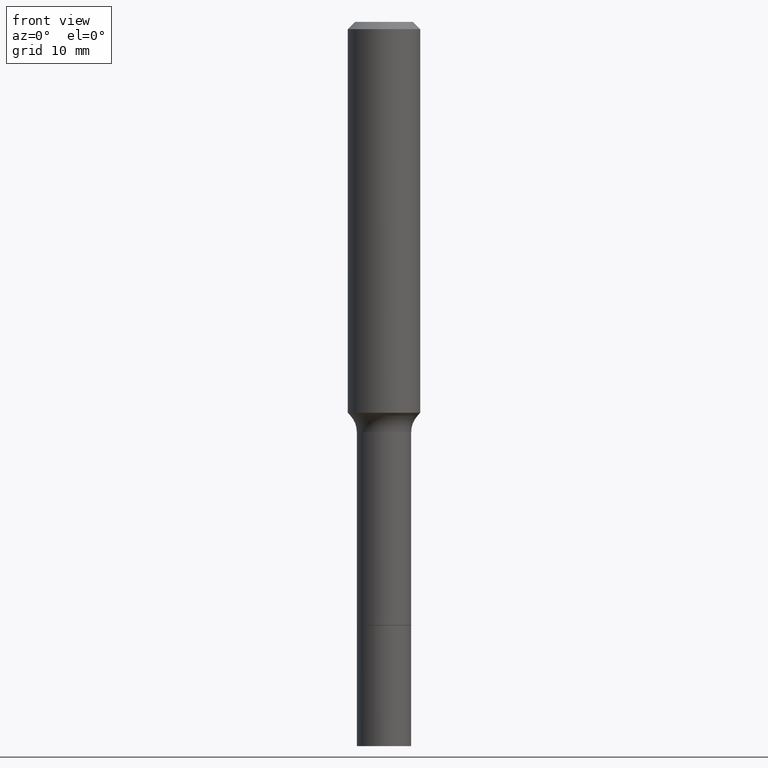
[diagram: clean part render]
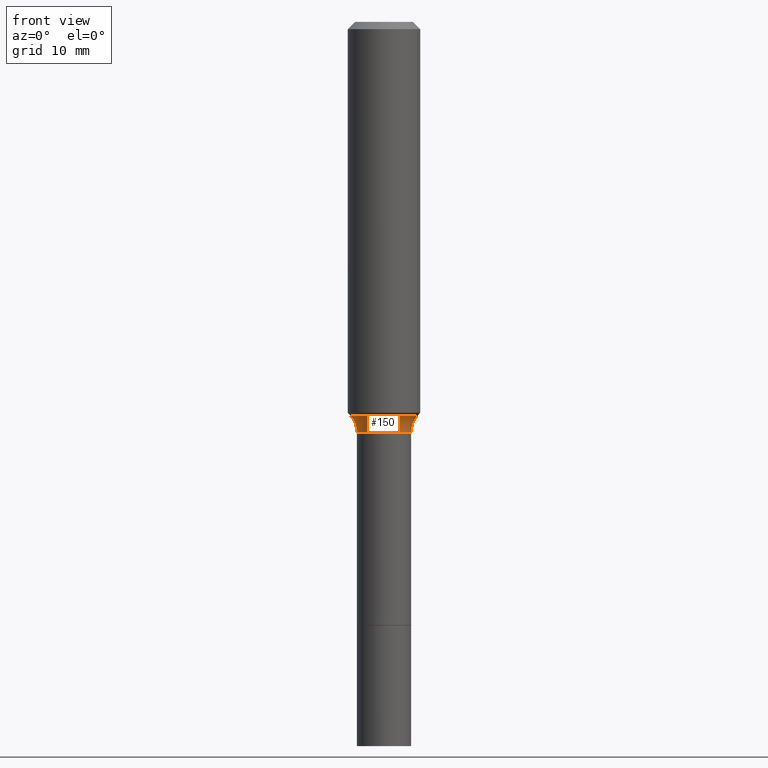
[diagram: same view with one face highlighted and labeled with its STEP entity id]
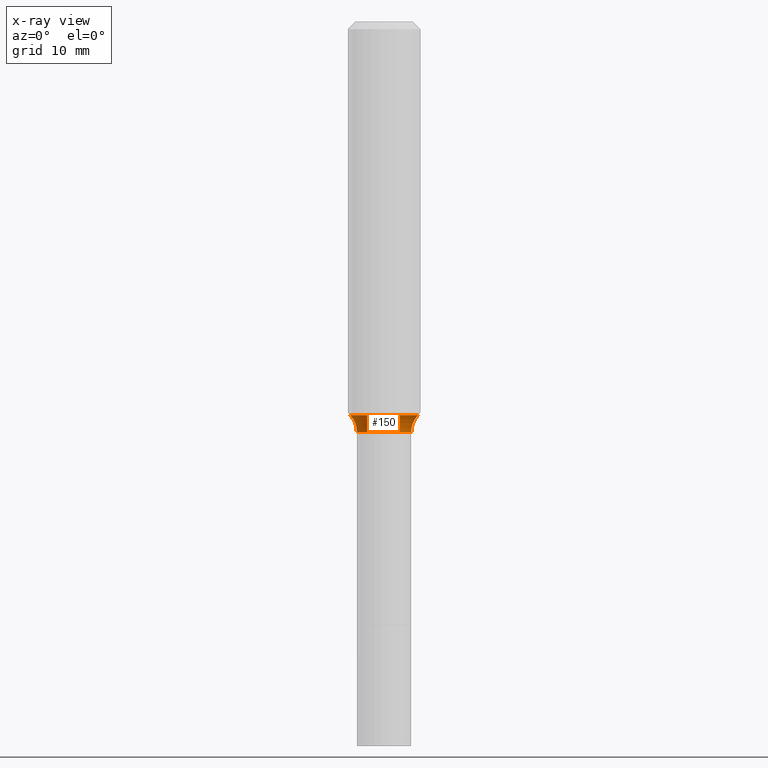
[diagram: x-ray of the same camera — body ghosted, the highlighted face saturated]
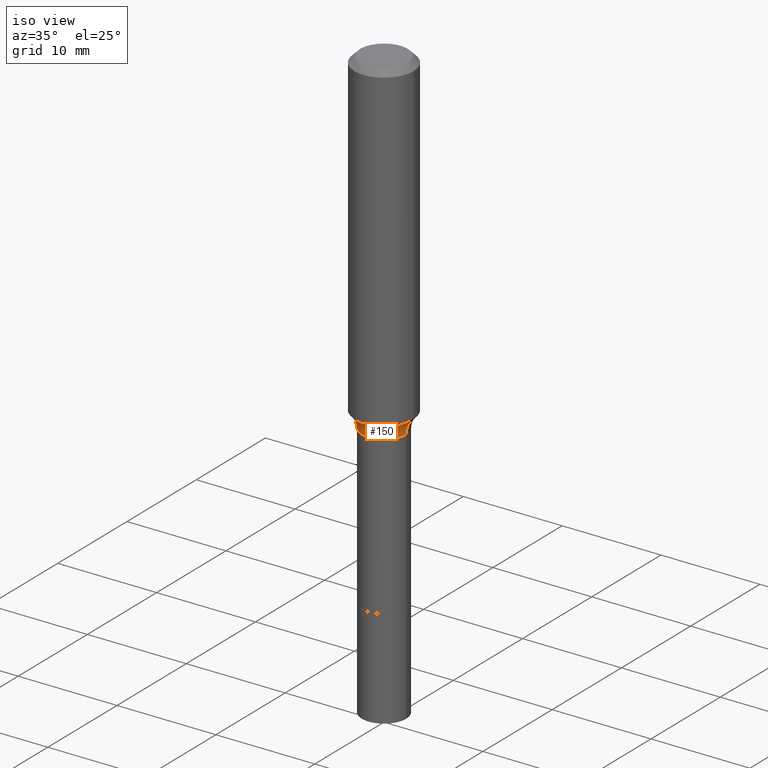
[diagram: same view with one face highlighted and labeled with its STEP entity id]
A machine part, front view. The second image highlights one B-rep face of the part: STEP entity #150.
The next image is the same camera in x-ray: the body ghosted, the highlighted face saturated — about 0% of this face is hidden behind the body in this view.
A second angle (iso view) of the same face is appended — the face is thin or edge-on in the first view.
In plain terms, the highlighted toroidal blend (fillet) surface has major radius 4.2824 mm and minor (blend) radius 2.032 mm.
Its self-contained STEP definition (entity closure, byte-faithful):
#1 = DIRECTION ( 'NONE',  ( 1.000000000000000000, -6.982962677686262766E-15, 0.000000000000000000 ) ) ;
#6 = ORIENTED_EDGE ( 'NONE', *, *, #467, .F. ) ;
#31 = CIRCLE ( 'NONE', #371, 0.07999999999999996003 ) ;
#37 = AXIS2_PLACEMENT_3D ( 'NONE', #356, #160, #318 ) ;
#49 = ORIENTED_EDGE ( 'NONE', *, *, #110, .F. ) ;
#68 = DIRECTION ( 'NONE',  ( -2.445468806185136597E-29, 3.491481338843145583E-15, 1.000000000000000000 ) ) ;
#75 = DIRECTION ( 'NONE',  ( -1.000000000000000000, 7.105427357601001859E-15, 0.000000000000000000 ) ) ;
#108 = DIRECTION ( 'NONE',  ( -6.982962677686266711E-15, -1.000000000000000000, 3.491481338843145583E-15 ) ) ;
#110 = EDGE_CURVE ( 'NONE', #495, #454, #416, .T. ) ;
#123 = ORIENTED_EDGE ( 'NONE', *, *, #300, .T. ) ;
#145 = EDGE_LOOP ( 'NONE', ( #6, #123, #364, #49 ) ) ;
#148 = CARTESIAN_POINT ( 'NONE',  ( -0.08859999999999991493, -5.141703215157328173E-15, -1.338200000000000056 ) ) ;
#150 = ADVANCED_FACE ( 'NONE', ( #342 ), #161, .F. ) ;
#156 = DIRECTION ( 'NONE',  ( 1.000000000000000000, -6.982962677686267499E-15, 4.883557194083112901E-29 ) ) ;
#160 = DIRECTION ( 'NONE',  ( -2.445468806185136597E-29, 3.491481338843145583E-15, 1.000000000000000000 ) ) ;
#161 = TOROIDAL_SURFACE ( 'NONE', #334, 0.1685999999999998888, 0.07999999999999994615 ) ;
#193 = CARTESIAN_POINT ( 'NONE',  ( 0.1685999999999998888, -5.849627835097799772E-15, -1.338200000000000056 ) ) ;
#218 = CIRCLE ( 'NONE', #37, 0.08859999999999991493 ) ;
#235 = CARTESIAN_POINT ( 'NONE',  ( -0.1685999999999998888, -3.474325275148368819E-15, -1.338200000000000056 ) ) ;
#242 = AXIS2_PLACEMENT_3D ( 'NONE', #193, #108, #1 ) ;
#253 = VERTEX_POINT ( 'NONE', #148 ) ;
#273 = AXIS2_PLACEMENT_3D ( 'NONE', #332, #415, #462 ) ;
#300 = EDGE_CURVE ( 'NONE', #330, #253, #31, .T. ) ;
#302 = CIRCLE ( 'NONE', #273, 0.1100917038704662398 ) ;
#318 = DIRECTION ( 'NONE',  ( 1.000000000000000000, -6.982962677686264344E-15, 0.000000000000000000 ) ) ;
#330 = VERTEX_POINT ( 'NONE', #491 ) ;
#332 = CARTESIAN_POINT ( 'NONE',  ( 3.139101899204769565E-29, -4.481805563857511051E-15, -1.283640131195000311 ) ) ;
#334 = AXIS2_PLACEMENT_3D ( 'NONE', #437, #68, #156 ) ;
#342 = FACE_OUTER_BOUND ( 'NONE', #145, .T. ) ;
#356 = CARTESIAN_POINT ( 'NONE',  ( 3.272526356436949336E-29, -4.672300327639896745E-15, -1.338200000000000056 ) ) ;
#364 = ORIENTED_EDGE ( 'NONE', *, *, #380, .T. ) ;
#370 = CARTESIAN_POINT ( 'NONE',  ( 0.08859999999999991493, -5.290990820882899698E-15, -1.338200000000000056 ) ) ;
#371 = AXIS2_PLACEMENT_3D ( 'NONE', #235, #440, #75 ) ;
#377 = CARTESIAN_POINT ( 'NONE',  ( 0.1100917038704661288, -5.250571823107863583E-15, -1.283640131195000311 ) ) ;
#380 = EDGE_CURVE ( 'NONE', #253, #454, #218, .T. ) ;
#415 = DIRECTION ( 'NONE',  ( -2.445468806185136597E-29, 3.491481338843145583E-15, 1.000000000000000000 ) ) ;
#416 = CIRCLE ( 'NONE', #242, 0.07999999999999996003 ) ;
#437 = CARTESIAN_POINT ( 'NONE',  ( 3.272526356436949336E-29, -4.672300327639896745E-15, -1.338200000000000056 ) ) ;
#440 = DIRECTION ( 'NONE',  ( 7.105427357601001859E-15, 1.000000000000000000, -3.491481338843145583E-15 ) ) ;
#454 = VERTEX_POINT ( 'NONE', #370 ) ;
#462 = DIRECTION ( 'NONE',  ( 1.000000000000000000, -6.982962677686265133E-15, 0.000000000000000000 ) ) ;
#467 = EDGE_CURVE ( 'NONE', #330, #495, #302, .T. ) ;
#491 = CARTESIAN_POINT ( 'NONE',  ( -0.1100917038704661288, -3.699556959331392522E-15, -1.283640131195000311 ) ) ;
#495 = VERTEX_POINT ( 'NONE', #377 ) ;